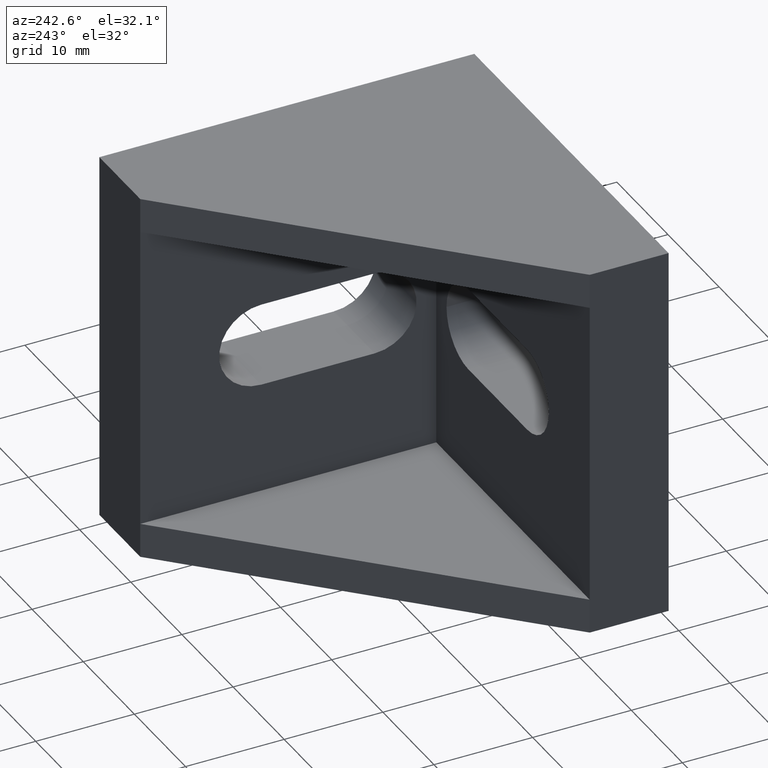
[diagram: clean part render]
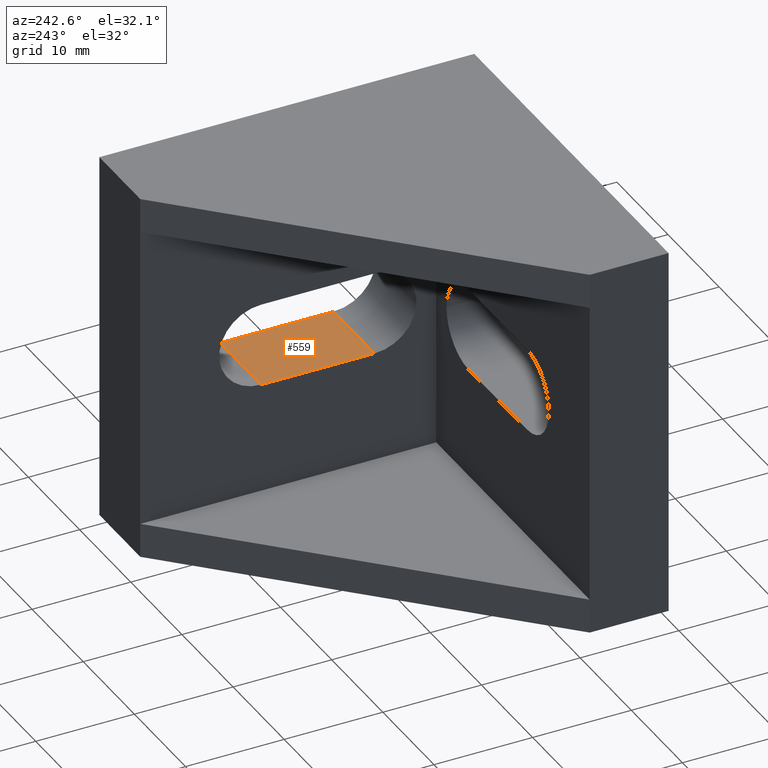
[diagram: same view with one face highlighted and labeled with its STEP entity id]
A machine part, auxiliary view. The second image highlights one B-rep face of the part: STEP entity #559.
In plain terms, the highlighted planar face has unit normal (0, 0, 1).
Its self-contained STEP definition (entity closure, byte-faithful):
#264=CARTESIAN_POINT('',(0.0,25.749999999896318,-4.249999999983629));
#265=VERTEX_POINT('',#264);
#275=CARTESIAN_POINT('',(0.0,14.249999999942702,-4.249999999983629));
#276=VERTEX_POINT('',#275);
#277=CARTESIAN_POINT('',(0.0,14.249999999942702,-4.249999999983629));
#278=DIRECTION('',(0.0,1.0,0.0));
#279=VECTOR('',#278,11.499999999953616);
#280=LINE('',#277,#279);
#281=EDGE_CURVE('',#276,#265,#280,.T.);
#357=CARTESIAN_POINT('',(-7.999999999968168,25.749999999896318,-4.249999999983629));
#358=VERTEX_POINT('',#357);
#376=CARTESIAN_POINT('',(-7.999999999968168,14.249999999942702,-4.249999999983629));
#377=VERTEX_POINT('',#376);
#385=CARTESIAN_POINT('',(-7.999999999968168,25.749999999896318,-4.249999999983629));
#386=DIRECTION('',(0.0,-1.0,0.0));
#387=VECTOR('',#386,11.499999999953616);
#388=LINE('',#385,#387);
#389=EDGE_CURVE('',#358,#377,#388,.T.);
#504=CARTESIAN_POINT('',(0.0,25.749999999896318,-4.249999999983629));
#505=DIRECTION('',(-1.0,0.0,0.0));
#506=VECTOR('',#505,7.999999999968168);
#507=LINE('',#504,#506);
#508=EDGE_CURVE('',#265,#358,#507,.T.);
#537=CARTESIAN_POINT('',(0.0,14.249999999942702,-4.249999999983629));
#538=DIRECTION('',(-1.0,0.0,0.0));
#539=VECTOR('',#538,7.999999999968168);
#540=LINE('',#537,#539);
#541=EDGE_CURVE('',#276,#377,#540,.T.);
#548=CARTESIAN_POINT('',(0.0,14.249999999942702,-4.249999999983629));
#549=DIRECTION('',(0.0,0.0,1.0));
#550=DIRECTION('',(0.0,1.0,0.0));
#551=AXIS2_PLACEMENT_3D('',#548,#549,#550);
#552=PLANE('',#551);
#553=ORIENTED_EDGE('',*,*,#508,.T.);
#554=ORIENTED_EDGE('',*,*,#389,.T.);
#555=ORIENTED_EDGE('',*,*,#541,.F.);
#556=ORIENTED_EDGE('',*,*,#281,.T.);
#557=EDGE_LOOP('',(#553,#554,#555,#556));
#558=FACE_OUTER_BOUND('',#557,.T.);
#559=ADVANCED_FACE('',(#558),#552,.T.);